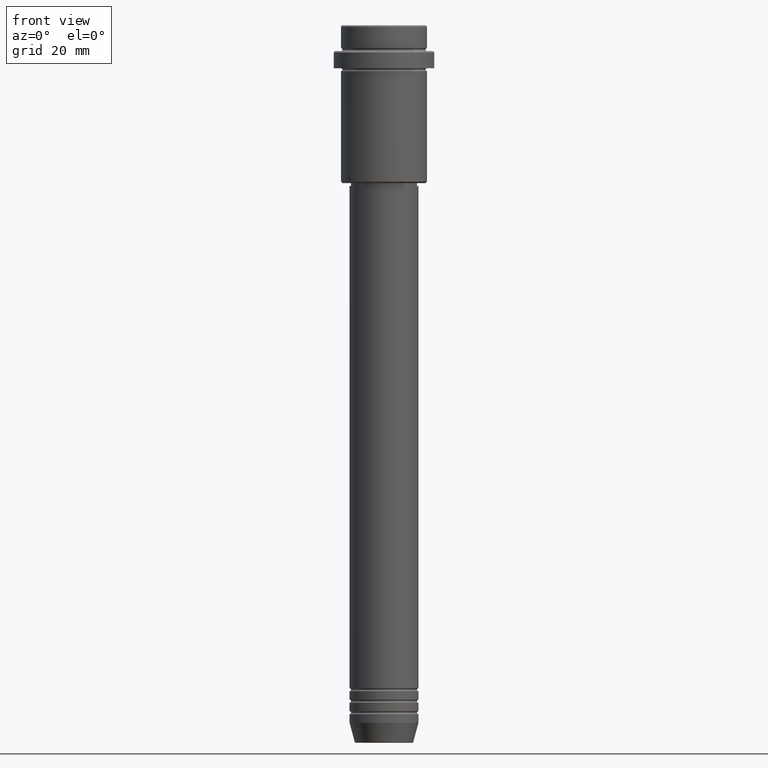
[diagram: clean part render]
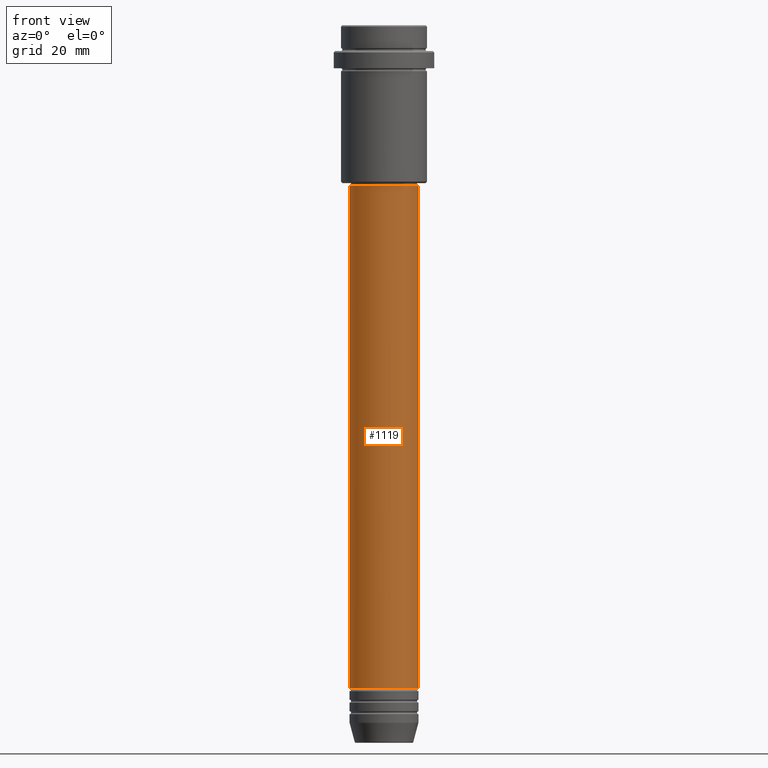
[diagram: same view with one face highlighted and labeled with its STEP entity id]
A machine part, front view. The second image highlights one B-rep face of the part: STEP entity #1119.
In plain terms, the highlighted cylindrical surface (edge-blend (fillet) strip) has radius 12 mm, axis along (-0, -0, 1).
Its self-contained STEP definition (entity closure, byte-faithful):
#3 = ORIENTED_EDGE ( 'NONE', *, *, #785, .T. ) ;
#58 = DIRECTION ( 'NONE',  ( 1.000000000000000000, 0.000000000000000000, 0.000000000000000000 ) ) ;
#71 = CARTESIAN_POINT ( 'NONE',  ( 12.00000000000000000, 0.000000000000000000, 0.000000000000000000 ) ) ;
#111 = EDGE_CURVE ( 'NONE', #206, #1298, #1101, .T. ) ;
#144 = CARTESIAN_POINT ( 'NONE',  ( 11.99999999999999822, 0.000000000000000000, -56.00000000000000000 ) ) ;
#151 = VECTOR ( 'NONE', #1384, 1000.000000000000000 ) ;
#156 = DIRECTION ( 'NONE',  ( 1.000000000000000000, 0.000000000000000000, 0.000000000000000000 ) ) ;
#206 = VERTEX_POINT ( 'NONE', #1273 ) ;
#218 = DIRECTION ( 'NONE',  ( -0.000000000000000000, -0.000000000000000000, 1.000000000000000000 ) ) ;
#256 = DIRECTION ( 'NONE',  ( 1.000000000000000000, 0.000000000000000000, 0.000000000000000000 ) ) ;
#336 = VECTOR ( 'NONE', #218, 1000.000000000000000 ) ;
#386 = CARTESIAN_POINT ( 'NONE',  ( 0.000000000000000000, 0.000000000000000000, -230.9999999999998863 ) ) ;
#434 = CARTESIAN_POINT ( 'NONE',  ( 12.00000000000000000, 0.000000000000000000, -230.9999999999998863 ) ) ;
#454 = EDGE_CURVE ( 'NONE', #1375, #990, #469, .T. ) ;
#469 = CIRCLE ( 'NONE', #1006, 11.99999999999999822 ) ;
#503 = FACE_OUTER_BOUND ( 'NONE', #957, .T. ) ;
#595 = AXIS2_PLACEMENT_3D ( 'NONE', #1266, #1021, #58 ) ;
#623 = AXIS2_PLACEMENT_3D ( 'NONE', #386, #694, #156 ) ;
#694 = DIRECTION ( 'NONE',  ( -0.000000000000000000, -0.000000000000000000, 1.000000000000000000 ) ) ;
#785 = EDGE_CURVE ( 'NONE', #1298, #990, #1034, .T. ) ;
#810 = DIRECTION ( 'NONE',  ( -0.000000000000000000, -0.000000000000000000, 1.000000000000000000 ) ) ;
#870 = CARTESIAN_POINT ( 'NONE',  ( -11.99999999999999822, 1.469576158976823750E-15, -56.00000000000000000 ) ) ;
#931 = CYLINDRICAL_SURFACE ( 'NONE', #595, 12.00000000000000000 ) ;
#953 = LINE ( 'NONE', #1285, #336 ) ;
#957 = EDGE_LOOP ( 'NONE', ( #1041, #1206, #3, #1066 ) ) ;
#990 = VERTEX_POINT ( 'NONE', #144 ) ;
#1006 = AXIS2_PLACEMENT_3D ( 'NONE', #1321, #810, #256 ) ;
#1021 = DIRECTION ( 'NONE',  ( -0.000000000000000000, -0.000000000000000000, 1.000000000000000000 ) ) ;
#1034 = LINE ( 'NONE', #71, #151 ) ;
#1041 = ORIENTED_EDGE ( 'NONE', *, *, #1320, .F. ) ;
#1066 = ORIENTED_EDGE ( 'NONE', *, *, #454, .F. ) ;
#1101 = CIRCLE ( 'NONE', #623, 12.00000000000000000 ) ;
#1119 = ADVANCED_FACE ( 'NONE', ( #503 ), #931, .T. ) ;
#1206 = ORIENTED_EDGE ( 'NONE', *, *, #111, .T. ) ;
#1266 = CARTESIAN_POINT ( 'NONE',  ( 0.000000000000000000, 0.000000000000000000, 0.000000000000000000 ) ) ;
#1273 = CARTESIAN_POINT ( 'NONE',  ( -12.00000000000000000, 1.469576158976823947E-15, -230.9999999999998863 ) ) ;
#1285 = CARTESIAN_POINT ( 'NONE',  ( -12.00000000000000000, 1.469576158976823947E-15, 0.000000000000000000 ) ) ;
#1298 = VERTEX_POINT ( 'NONE', #434 ) ;
#1320 = EDGE_CURVE ( 'NONE', #206, #1375, #953, .T. ) ;
#1321 = CARTESIAN_POINT ( 'NONE',  ( 0.000000000000000000, 0.000000000000000000, -56.00000000000000000 ) ) ;
#1375 = VERTEX_POINT ( 'NONE', #870 ) ;
#1384 = DIRECTION ( 'NONE',  ( -0.000000000000000000, -0.000000000000000000, 1.000000000000000000 ) ) ;